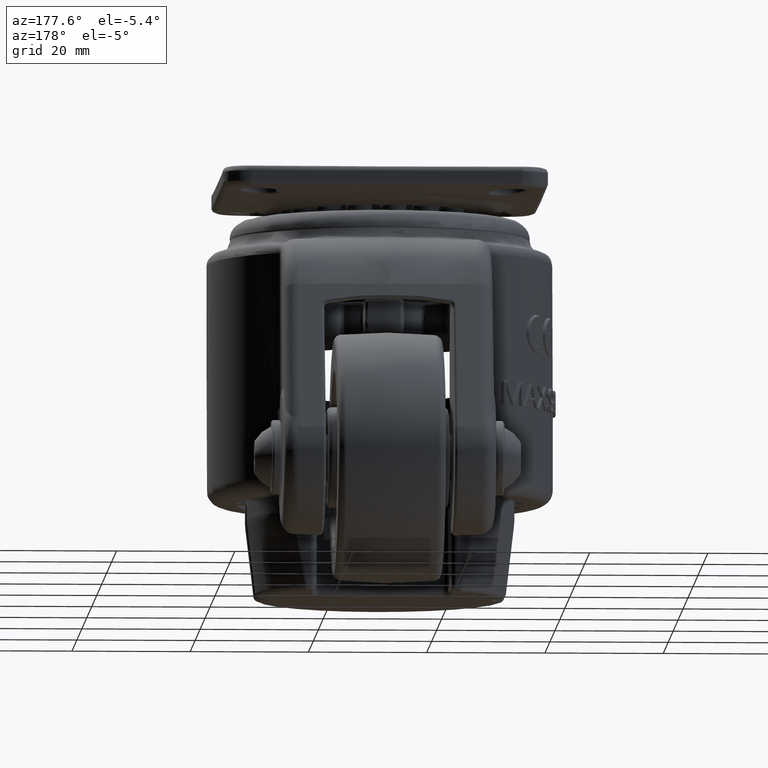
[diagram: clean part render]
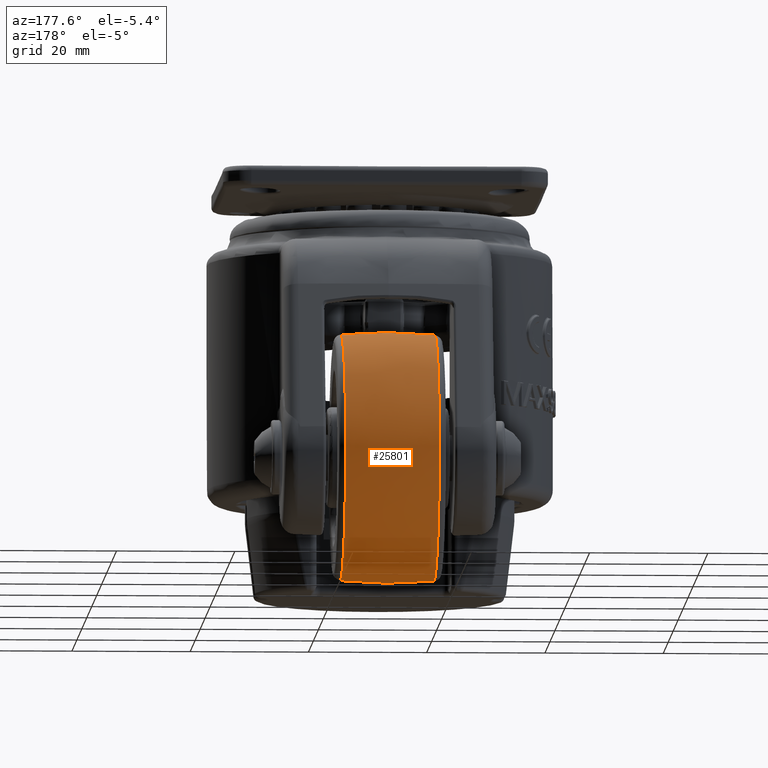
[diagram: same view with one face highlighted and labeled with its STEP entity id]
A machine part, auxiliary view. The second image highlights one B-rep face of the part: STEP entity #25801.
In plain terms, the highlighted face is a freeform B-spline surface patch.
Its self-contained STEP definition (entity closure, byte-faithful):
#14=(
BOUNDED_CURVE()
B_SPLINE_CURVE(2,(#43750,#43751,#43752),.UNSPECIFIED.,.F.,.F.)
B_SPLINE_CURVE_WITH_KNOTS((3,3),(-0.0957102473589923,0.0957102463909246),
 .UNSPECIFIED.)
CURVE()
GEOMETRIC_REPRESENTATION_ITEM()
RATIONAL_B_SPLINE_CURVE((1.,0.995423265244634,1.))
REPRESENTATION_ITEM('')
);
#462=(
BOUNDED_SURFACE()
B_SPLINE_SURFACE(2,2,((#43722,#43723,#43724,#43725,#43726,#43727,#43728,
#43729,#43730),(#43731,#43732,#43733,#43734,#43735,#43736,#43737,#43738,
#43739),(#43740,#43741,#43742,#43743,#43744,#43745,#43746,#43747,#43748)),
 .UNSPECIFIED.,.F.,.T.,.F.)
B_SPLINE_SURFACE_WITH_KNOTS((3,3),(3,2,2,2,3),(-0.0957102502680982,0.0957103359994708),
(-3.14159265358979,-1.5707963267949,0.,1.5707963267949,3.14159265358979),
 .UNSPECIFIED.)
GEOMETRIC_REPRESENTATION_ITEM()
RATIONAL_B_SPLINE_SURFACE(((1.,0.707106781186548,1.,0.707106781186548,1.,
0.707106781186548,1.,0.707106781186548,1.),(0.995423265244634,0.703870541005336,
0.995423265244634,0.703870541005336,0.995423265244634,0.703870541005336,
0.995423265244634,0.703870541005336,0.995423265244634),(1.,0.707106781186548,
1.,0.707106781186548,1.,0.707106781186548,1.,0.707106781186548,1.)))
REPRESENTATION_ITEM('')
SURFACE()
);
#6249=FACE_OUTER_BOUND('',#7916,.T.);
#7916=EDGE_LOOP('',(#11231,#11232,#11233,#11234,#11235));
#11231=ORIENTED_EDGE('',*,*,#18318,.F.);
#11232=ORIENTED_EDGE('',*,*,#18319,.F.);
#11233=ORIENTED_EDGE('',*,*,#18346,.T.);
#11234=ORIENTED_EDGE('',*,*,#18347,.T.);
#11235=ORIENTED_EDGE('',*,*,#18346,.F.);
#18318=EDGE_CURVE('',#22011,#22012,#24467,.T.);
#18319=EDGE_CURVE('',#22012,#22011,#24468,.T.);
#18346=EDGE_CURVE('',#22012,#22039,#14,.T.);
#18347=EDGE_CURVE('',#22039,#22039,#24483,.T.);
#22011=VERTEX_POINT('',#43659);
#22012=VERTEX_POINT('',#43660);
#22039=VERTEX_POINT('',#43749);
#24467=CIRCLE('',#27938,20.8738789079235);
#24468=CIRCLE('',#27939,20.8738789079235);
#24483=CIRCLE('',#27961,20.8738789079235);
#25801=ADVANCED_FACE('',(#6249),#462,.F.);
#27938=AXIS2_PLACEMENT_3D('',#43661,#31787,#31788);
#27939=AXIS2_PLACEMENT_3D('',#43662,#31789,#31790);
#27961=AXIS2_PLACEMENT_3D('',#43753,#31845,#31846);
#31787=DIRECTION('center_axis',(-1.,0.,0.));
#31788=DIRECTION('ref_axis',(0.,0.,-1.));
#31789=DIRECTION('center_axis',(-1.,0.,0.));
#31790=DIRECTION('ref_axis',(0.,0.,-1.));
#31845=DIRECTION('center_axis',(-1.,0.,0.));
#31846=DIRECTION('ref_axis',(0.,0.,1.));
#43659=CARTESIAN_POINT('',(3.10246822362043,24.6150030360456,-51.7679635017191));
#43660=CARTESIAN_POINT('',(3.10246822362043,24.6150033828905,-10.0202056858721));
#43661=CARTESIAN_POINT('Origin',(3.10246822362043,24.6150030360456,-30.8940845937956));
#43662=CARTESIAN_POINT('Origin',(3.10246822362043,24.6150030360456,-30.8940845937956));
#43722=CARTESIAN_POINT('Ctrl Pts',(3.10246785865461,24.6150033828905,-10.0202044046474));
#43723=CARTESIAN_POINT('Ctrl Pts',(3.10246696771897,3.74112470761827,-10.0202044046473));
#43724=CARTESIAN_POINT('Ctrl Pts',(3.10246358397492,3.74112470761827,-30.8940830799193));
#43725=CARTESIAN_POINT('Ctrl Pts',(3.10246020023087,3.74112470761827,-51.7679617551913));
#43726=CARTESIAN_POINT('Ctrl Pts',(3.10246109116652,24.6150033828905,-51.7679617551915));
#43727=CARTESIAN_POINT('Ctrl Pts',(3.10246198210216,45.4888820581628,-51.7679617551916));
#43728=CARTESIAN_POINT('Ctrl Pts',(3.1024653658462,45.4888820581628,-30.8940830799196));
#43729=CARTESIAN_POINT('Ctrl Pts',(3.10246874959025,45.4888820581628,-10.0202044046476));
#43730=CARTESIAN_POINT('Ctrl Pts',(3.10246785865461,24.6150033828905,-10.0202044046474));
#43731=CARTESIAN_POINT('Ctrl Pts',(11.0267051944352,24.6150030446695,-9.25945058902459));
#43732=CARTESIAN_POINT('Ctrl Pts',(11.0267042710292,2.980369269222,-9.25945058902444));
#43733=CARTESIAN_POINT('Ctrl Pts',(11.0267007639635,2.98036926922199,-30.8940843644717));
#43734=CARTESIAN_POINT('Ctrl Pts',(11.0266972568978,2.98036926922199,-52.5287181399189));
#43735=CARTESIAN_POINT('Ctrl Pts',(11.0266981803039,24.6150030446695,-52.528718139919));
#43736=CARTESIAN_POINT('Ctrl Pts',(11.02669910371,46.249636820117,-52.5287181399192));
#43737=CARTESIAN_POINT('Ctrl Pts',(11.0267026107756,46.249636820117,-30.894084364472));
#43738=CARTESIAN_POINT('Ctrl Pts',(11.0267061178413,46.249636820117,-9.25945058902475));
#43739=CARTESIAN_POINT('Ctrl Pts',(11.0267051944352,24.6150030446695,-9.25945058902459));
#43740=CARTESIAN_POINT('Ctrl Pts',(18.9509422183518,24.6150027064484,-10.0202076531079));
#43741=CARTESIAN_POINT('Ctrl Pts',(18.9509413274162,3.74112471053189,-10.0202076531078));
#43742=CARTESIAN_POINT('Ctrl Pts',(18.9509379436723,3.74112471053189,-30.894085649024));
#43743=CARTESIAN_POINT('Ctrl Pts',(18.9509345599283,3.74112471053189,-51.7679636449403));
#43744=CARTESIAN_POINT('Ctrl Pts',(18.950935450864,24.6150027064484,-51.7679636449405));
#43745=CARTESIAN_POINT('Ctrl Pts',(18.9509363417996,45.488880702365,-51.7679636449406));
#43746=CARTESIAN_POINT('Ctrl Pts',(18.9509397255435,45.488880702365,-30.8940856490243));
#43747=CARTESIAN_POINT('Ctrl Pts',(18.9509431092874,45.488880702365,-10.0202076531081));
#43748=CARTESIAN_POINT('Ctrl Pts',(18.9509422183518,24.6150027064484,-10.0202076531079));
#43749=CARTESIAN_POINT('',(18.9509349540534,24.6150027064487,-10.0202056858721));
#43750=CARTESIAN_POINT('Ctrl Pts',(3.10246809840876,24.6150033828905,-10.0202043816302));
#43751=CARTESIAN_POINT('Ctrl Pts',(11.026697981029,24.6150030446698,-9.25945061204069));
#43752=CARTESIAN_POINT('Ctrl Pts',(18.9509348332578,24.6150027064487,-10.020206944111));
#43753=CARTESIAN_POINT('Origin',(18.9509349540534,24.6150030360456,-30.8940845937956));